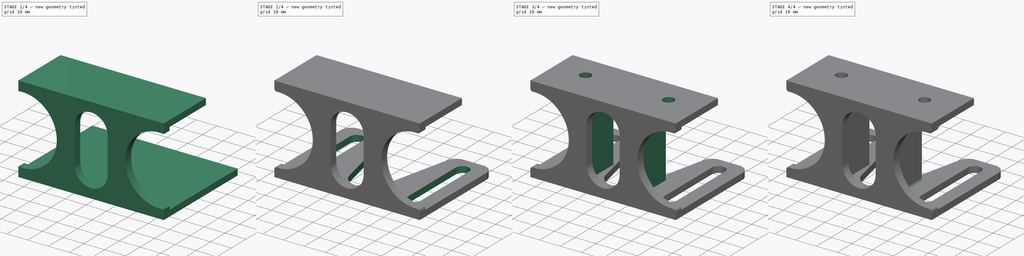
[diagram: build sequence overview — one tinted view per stage of 4, left to right]
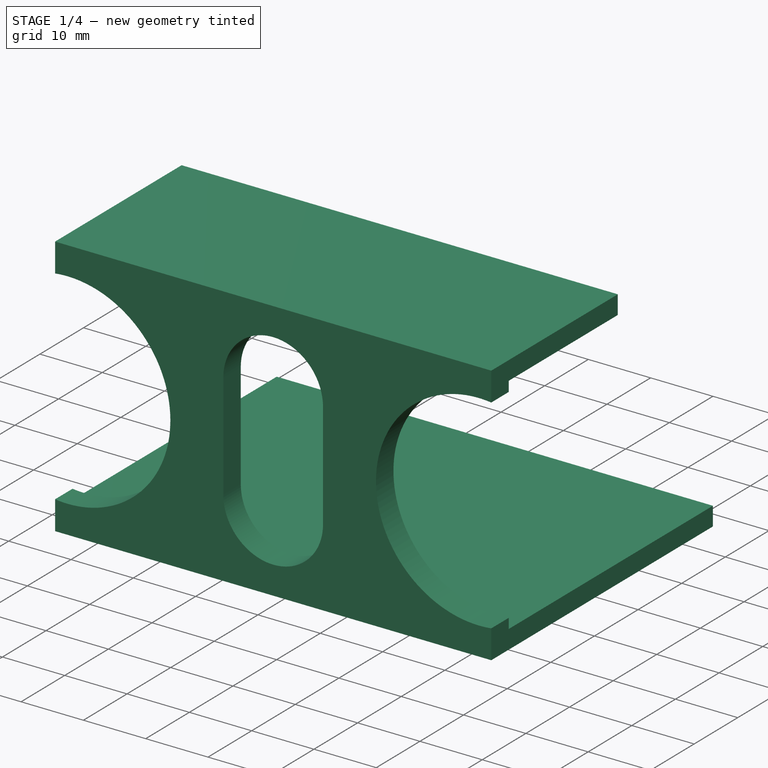
[diagram: stage 1 of 4 — iso view after this stage's code; geometry added in this stage tinted green]
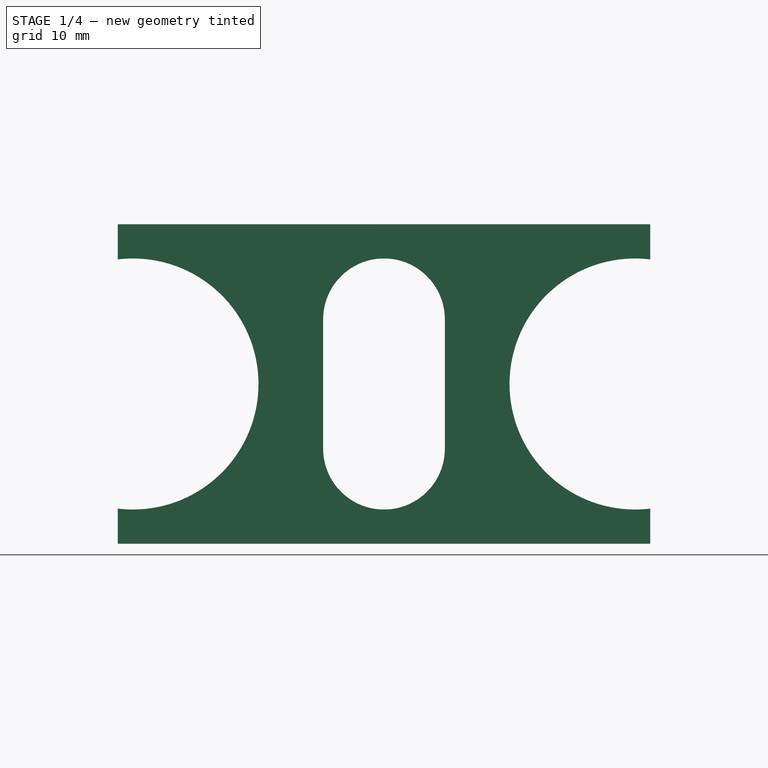
[diagram: stage 1 of 4 — front view after this stage's code; geometry added in this stage tinted green]
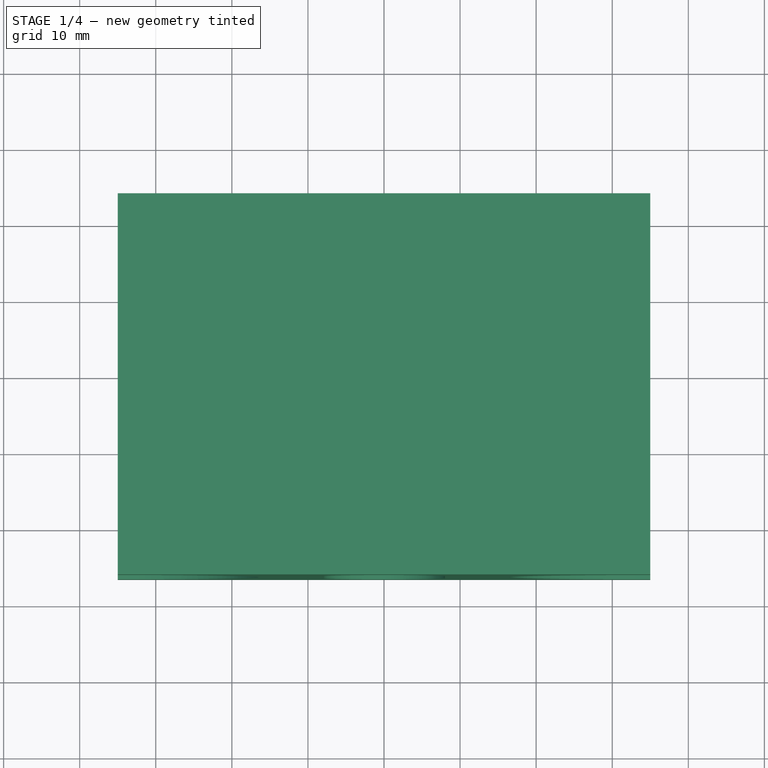
[diagram: stage 1 of 4 — top view after this stage's code; geometry added in this stage tinted green]
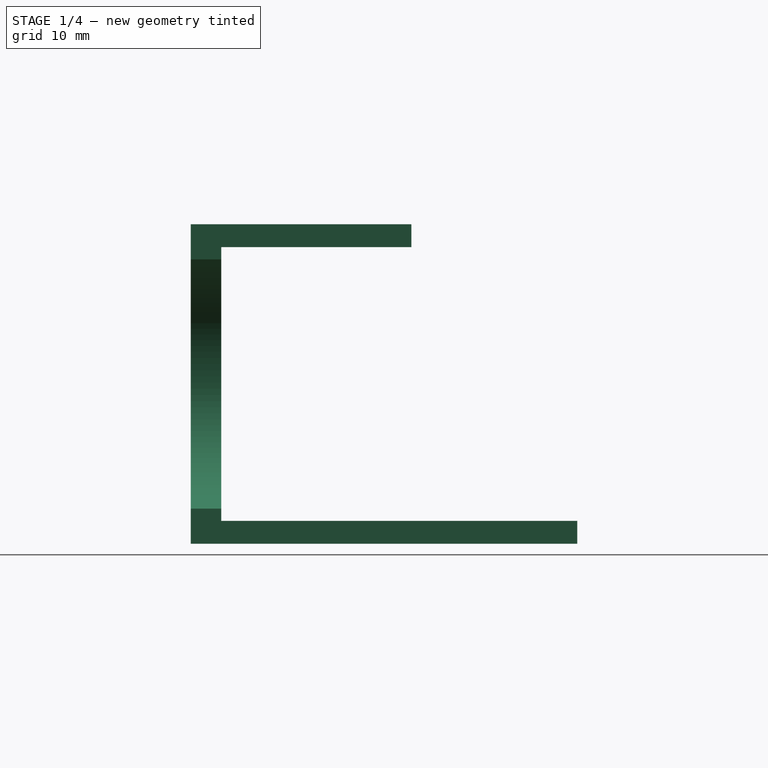
[diagram: stage 1 of 4 — right view after this stage's code; geometry added in this stage tinted green]
FCSTD DOCUMENT  (FreeCAD 0.19R24344 (Git))
Label: Stand_Camera-Case
Comment: Stand for PS3 Camera Case
License: Creative Commons Attribution-NonCommercial-ShareAlike
LicenseURL: http://creativecommons.org/licenses/by-nc-sa/4.0/
objects: Sketcher::SketchObject×5, PartDesign::Fillet×5, PartDesign::Pocket×3, PartDesign::Pad×2, PartDesign::CoordinateSystem×2, PartDesign::Body×1
note: 28 computed .brp shape members not serialized (recipe doc carries the construction recipe); baked Part::Feature solids carry a one-line shape summary decoded from their .brp

FEATURE [Sketcher::SketchObject] Sketch
  FullyConstrained = true
  MapMode = 5
  Placement = pos=(0,0,0) rot=(0.57735,0.57735,0.57735;2.0944rad)
  Support = -> [YZ_Plane]
  sketch-geometry (8):
    g0: LineSegment StartX=34.3 StartY=-18 StartZ=0 EndX=34.3 EndY=-21 EndZ=0
    g1: LineSegment StartX=34.3 StartY=-21 StartZ=0 EndX=-16.5 EndY=-21 EndZ=0
    g2: LineSegment StartX=-16.5 StartY=-21 StartZ=0 EndX=-16.5 EndY=21 EndZ=0
    g3: LineSegment StartX=-16.5 StartY=21 StartZ=0 EndX=12.5 EndY=21 EndZ=0
    g4: LineSegment StartX=12.5 StartY=21 StartZ=0 EndX=12.5 EndY=18 EndZ=0
    g5: LineSegment StartX=12.5 StartY=18 StartZ=0 EndX=-12.5 EndY=18 EndZ=0
    g6: LineSegment StartX=-12.5 StartY=18 StartZ=0 EndX=-12.5 EndY=-18 EndZ=0
    g7: LineSegment StartX=-12.5 StartY=-18 StartZ=0 EndX=34.3 EndY=-18 EndZ=0
  constraints (22):
    c: Vertical(g0)
    c: Coincident(g0,g1)
    c: Horizontal(g1)
    c: Coincident(g1,g2)
    c: Vertical(g2)
    c: Coincident(g2,g3)
    c: Horizontal(g3)
    c: Coincident(g3,g4)
    c: Vertical(g4)
    c: Coincident(g4,g5)
    c: Coincident(g5,g6)
    c: Coincident(g6,g7)
    c: Coincident(g7,g0)
    c: Horizontal(g7)
    c: Distance(g0) = 3
    c: Distance(g4) = 3
    c: DistanceX(g2,g5) = 4
    c: Distance(g5) = 25
    c: Distance(g2) = 42
    c: Distance(g1) = 50.8
    c: Symmetric(g5,g6,g-1)
    c: Symmetric(g4,g5,g-2)
FEATURE [PartDesign::Pad] Pad
  Direction = (1,1,1)
  Length = 70
  Length2 = 100
  Midplane = true
  Placement = pos=(0,0,0) rot=(0.57735,0.57735,0.57735;2.0944rad)
  Profile = -> Sketch
  Type = 0
FEATURE [Sketcher::SketchObject] Sketch001
  ExternalGeometry = -> [Pad]
  FullyConstrained = true
  MapMode = 5
  Placement = pos=(-7.3e-15,-16.5,3.6e-15) rot=(-0.57735,-0.57735,0.57735;4.18879rad)
  Support = -> [Pad]
  sketch-geometry (8):
    g0: Circle CenterX=0 CenterY=33 CenterZ=0 NormalX=0 NormalY=0 NormalZ=1 AngleXU=0 Radius=16.5
    g1: Circle CenterX=0 CenterY=-33 CenterZ=0 NormalX=0 NormalY=0 NormalZ=1 AngleXU=0 Radius=16.5
    g2: ArcOfCircle CenterX=-8.5 CenterY=0 CenterZ=0 NormalX=0 NormalY=0 NormalZ=1 AngleXU=0 Radius=8 StartAngle=1.5708 EndAngle=4.71239
    g3: ArcOfCircle CenterX=8.5 CenterY=1e-16 CenterZ=0 NormalX=0 NormalY=0 NormalZ=1 AngleXU=0 Radius=8 StartAngle=4.71239 EndAngle=7.85398
    g4: LineSegment StartX=-8.5 StartY=-8 StartZ=0 EndX=8.5 EndY=-8 EndZ=0
    g5: LineSegment StartX=-8.5 StartY=8 StartZ=0 EndX=8.5 EndY=8 EndZ=0
    g6: LineSegment StartX=-16.5 StartY=2.21473e-05 StartZ=0 EndX=-16.5 EndY=10 EndZ=0
    g7: LineSegment StartX=16.5 StartY=0 StartZ=0 EndX=16.5 EndY=10 EndZ=0
  constraints (22):
    c: Diameter(g0) = 33
    c: Diameter(g1) = 33
    c: PointOnObject(g1,g-2)
    c: Tangent(g2,g5) = 1.5708
    c: Tangent(g2,g4) = -1.5708
    c: Tangent(g4,g3) = -1.5708
    c: Tangent(g5,g3) = 1.5708
    c: Horizontal(g4)
    c: PointOnObject(g2,g-1)
    c: Symmetric(g2,g3,g-2)
    c: PointOnObject(g6,g2)
    c: Vertical(g6)
    c: Tangent(g6,g2)
    c: PointOnObject(g7,g3)
    c: Vertical(g7)
    c: PointOnObject(g7,g-1)
    c: Diameter(g3) = 16
    c: DistanceX(g6,g7) = 33
    c: Distance(g-1,g1) = 33
    c: Symmetric(g0,g1,g-1)
    c: Distance(g7) = 10
    c: Distance(g6) = 10
FEATURE [PartDesign::Pocket] Pocket
  BaseFeature = -> Pad
  Length = 5
  Length2 = 100
  Placement = pos=(0,0,0) rot=(0.57735,0.57735,0.57735;2.0944rad)
  Profile = -> Sketch001
  Type = 0
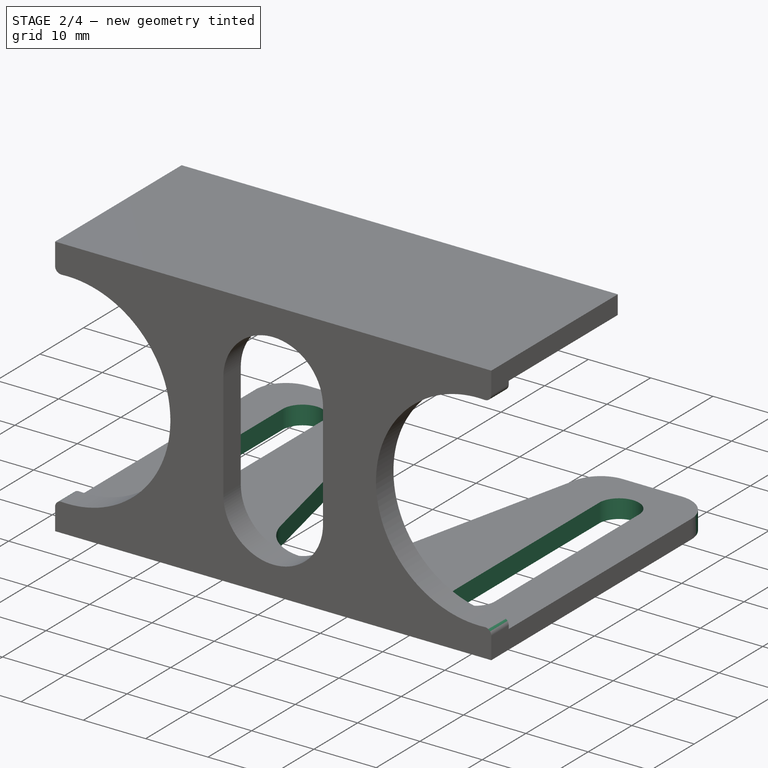
[diagram: stage 2 of 4 — iso view after this stage's code; geometry added in this stage tinted green]
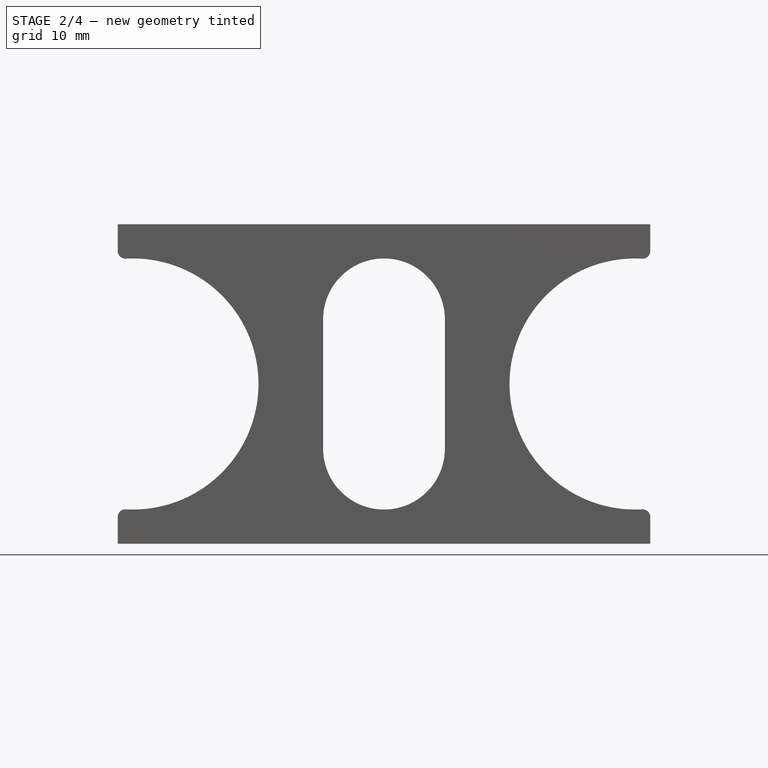
[diagram: stage 2 of 4 — front view after this stage's code; geometry added in this stage tinted green]
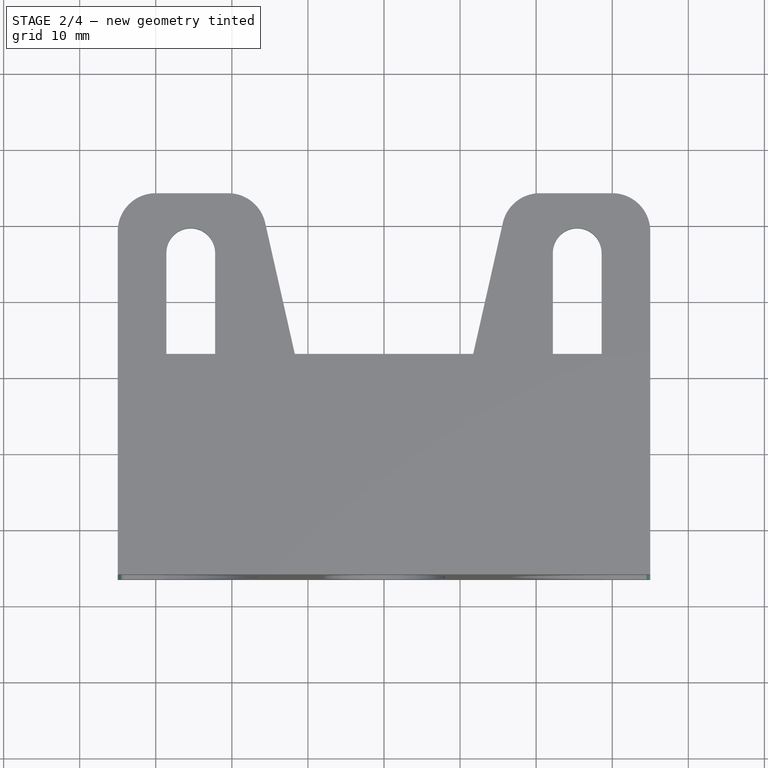
[diagram: stage 2 of 4 — top view after this stage's code; geometry added in this stage tinted green]
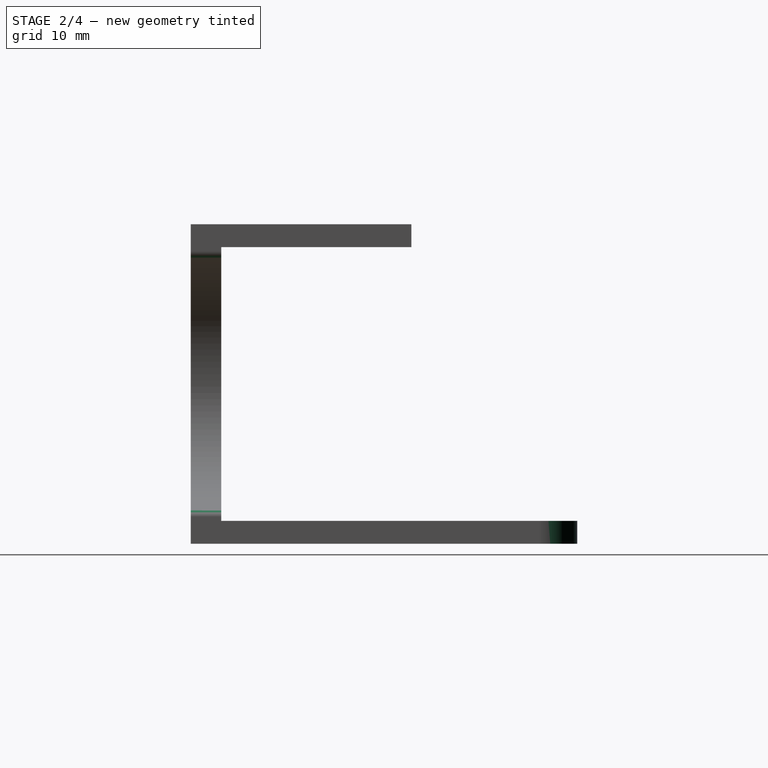
[diagram: stage 2 of 4 — right view after this stage's code; geometry added in this stage tinted green]
FEATURE [Sketcher::SketchObject] Sketch002
  ExternalGeometry = -> [Pocket]
  FullyConstrained = true
  MapMode = 5
  Placement = pos=(5.9e-15,-9.2e-15,-21) rot=(0.707107,0.707107,0;3.14159rad)
  Support = -> [Pocket]
  sketch-geometry (13):
    g0: ArcOfCircle CenterX=-6.5 CenterY=-25.4 CenterZ=0 NormalX=0 NormalY=0 NormalZ=1 AngleXU=0 Radius=3.2 StartAngle=1.5708 EndAngle=4.71239
    g1: ArcOfCircle CenterX=26.5 CenterY=-25.4 CenterZ=0 NormalX=0 NormalY=0 NormalZ=1 AngleXU=0 Radius=3.2 StartAngle=4.71239 EndAngle=7.85398
    g2: LineSegment StartX=-6.5 StartY=-28.6 StartZ=0 EndX=26.5 EndY=-28.6 EndZ=0
    g3: LineSegment StartX=-6.5 StartY=-22.2 StartZ=0 EndX=26.5 EndY=-22.2 EndZ=0
    g4: ArcOfCircle CenterX=-6.5 CenterY=25.4 CenterZ=0 NormalX=0 NormalY=0 NormalZ=1 AngleXU=0 Radius=3.2 StartAngle=1.5708 EndAngle=4.71239
    g5: ArcOfCircle CenterX=26.5 CenterY=25.4 CenterZ=0 NormalX=0 NormalY=0 NormalZ=1 AngleXU=0 Radius=3.2 StartAngle=4.71239 EndAngle=7.85398
    g6: LineSegment StartX=-6.5 StartY=22.2 StartZ=0 EndX=26.5 EndY=22.2 EndZ=0
    g7: LineSegment StartX=-6.5 StartY=28.6 StartZ=0 EndX=26.5 EndY=28.6 EndZ=0
    g8: ArcOfCircle CenterX=-1.4982 CenterY=0 CenterZ=0 NormalX=0 NormalY=0 NormalZ=1 AngleXU=0 Radius=8.2018 StartAngle=1.79309 EndAngle=4.4901
    g9: ArcOfCircle CenterX=38.0294 CenterY=-3e-16 CenterZ=0 NormalX=0 NormalY=0 NormalZ=1 AngleXU=0 Radius=16.9162 StartAngle=4.4901 EndAngle=8.07627
    g10: LineSegment StartX=-3.3064 StartY=-8 StartZ=0 EndX=34.3 EndY=-16.5 EndZ=0
    g11: LineSegment StartX=-3.3064 StartY=8 StartZ=0 EndX=34.3 EndY=16.5 EndZ=0
    g12: LineSegment StartX=-9.7 StartY=25.4 StartZ=0 EndX=-9.7 EndY=-25.4 EndZ=0
  constraints (33):
    c: Tangent(g0,g3) = 1.5708
    c: Tangent(g0,g2) = -1.5708
    c: Tangent(g2,g1) = -1.5708
    c: Tangent(g3,g1) = 1.5708
    c: Horizontal(g2)
    c: Equal(g0,g1)
    c: Tangent(g4,g7) = 1.5708
    c: Tangent(g4,g6) = -1.5708
    c: Tangent(g6,g5) = -1.5708
    c: Tangent(g7,g5) = 1.5708
    c: Horizontal(g6)
    c: Equal(g4,g5)
    c: DistanceY(g0,g4) = 50.8
    c: Symmetric(g4,g0,g-1)
    c: Distance(g5,g5) = 6.4
    c: Distance(g1,g1) = 6.4
    c: Distance(g6) = 33
    c: Distance(g3) = 33
    c: DistanceX(g-3,g4) = 10
    c: Tangent(g8,g11) = 1.5708
    c: Tangent(g8,g10) = -1.5708
    c: Tangent(g10,g9) = -1.5708
    c: Tangent(g11,g9) = 1.5708
    c: PointOnObject(g8,g-1)
    c: Vertical(g8,g8)
    c: PointOnObject(g12,g4)
    c: PointOnObject(g12,g0)
    c: Vertical(g12)
    c: Tangent(g12,g4)
    c: Tangent(g8,g12)
    c: PointOnObject(g9,g-4)
    c: Distance(g8,g8) = 16
    c: Distance(g9,g9) = 33
FEATURE [PartDesign::Pocket] Pocket001
  BaseFeature = -> Pocket
  Length = 5
  Length2 = 100
  Placement = pos=(0,0,0) rot=(0.57735,0.57735,0.57735;2.0944rad)
  Profile = -> Sketch002
  Type = 0
FEATURE [PartDesign::Fillet] Fillet
  Base = -> Pocket001 [Edge81,Edge79,Edge7,Edge64]
  BaseFeature = -> Pocket001
  Placement = pos=(0,0,0) rot=(0.57735,0.57735,0.57735;2.0944rad)
  Radius = 1
  SupportTransform = false
FEATURE [PartDesign::Fillet] Fillet001
  Base = -> Fillet [Edge86,Edge93,Edge57,Edge5]
  BaseFeature = -> Fillet
  Placement = pos=(0,0,0) rot=(0.57735,0.57735,0.57735;2.0944rad)
  Radius = 5
  SupportTransform = false
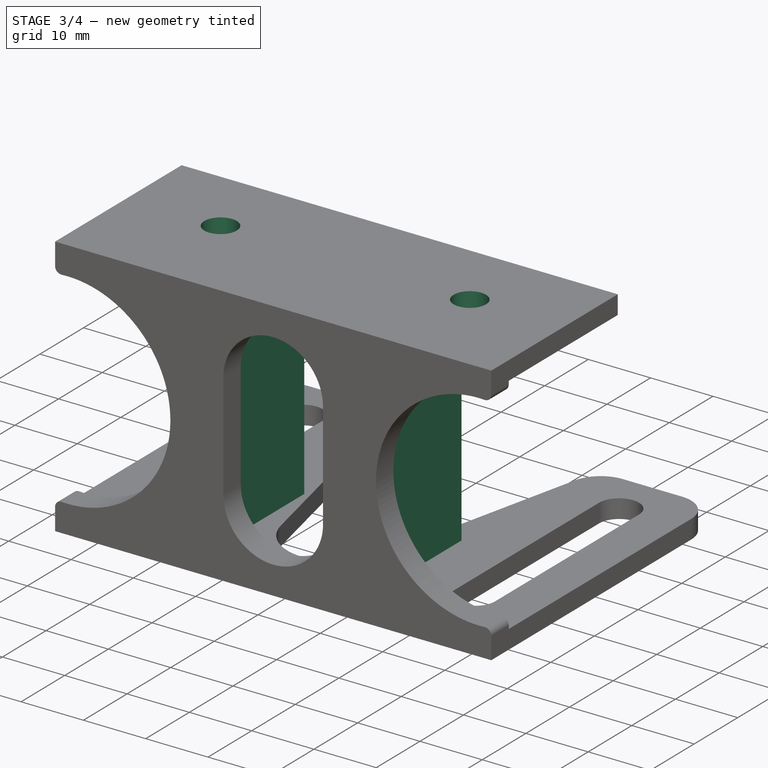
[diagram: stage 3 of 4 — iso view after this stage's code; geometry added in this stage tinted green]
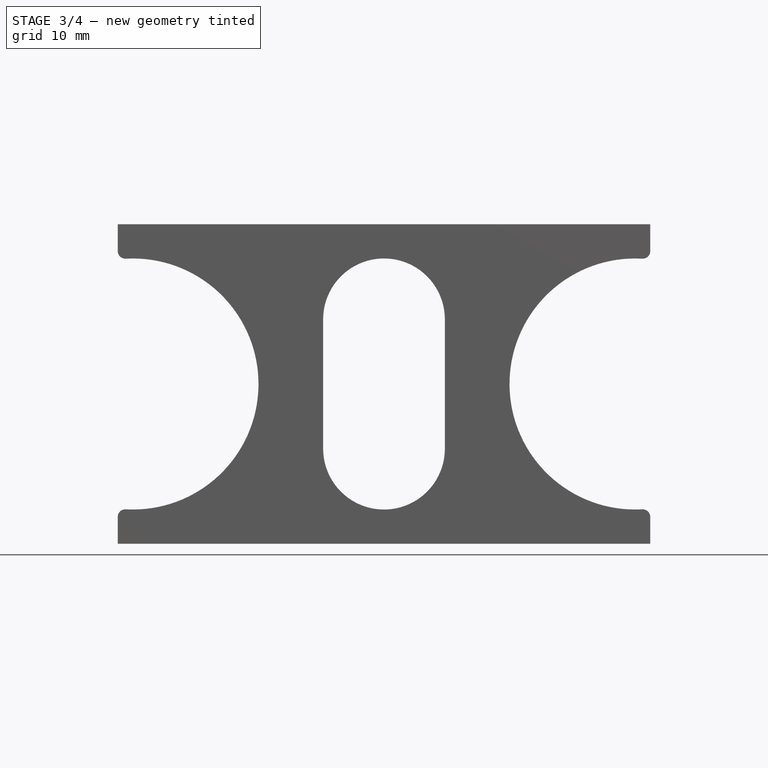
[diagram: stage 3 of 4 — front view after this stage's code; geometry added in this stage tinted green]
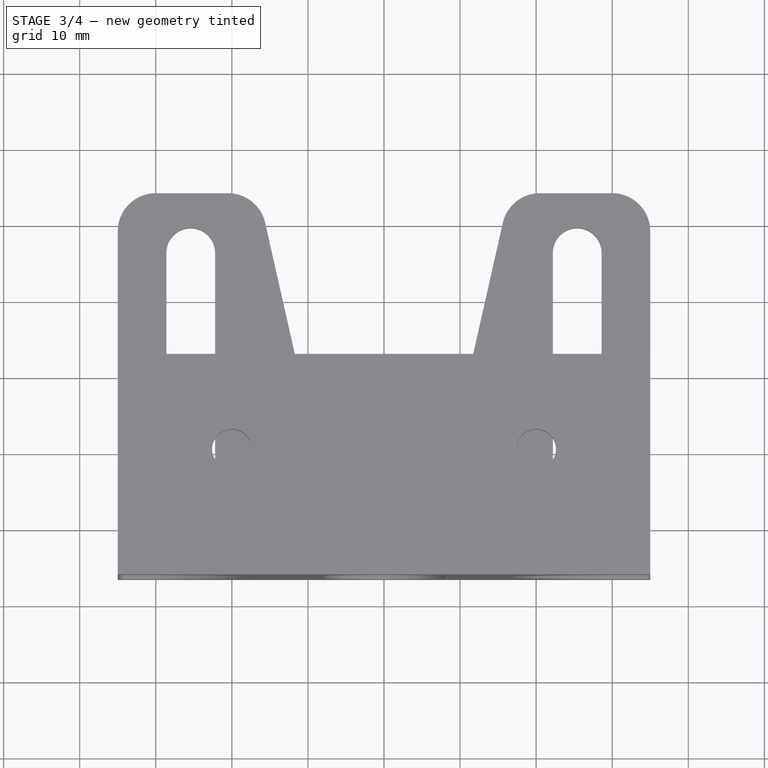
[diagram: stage 3 of 4 — top view after this stage's code; geometry added in this stage tinted green]
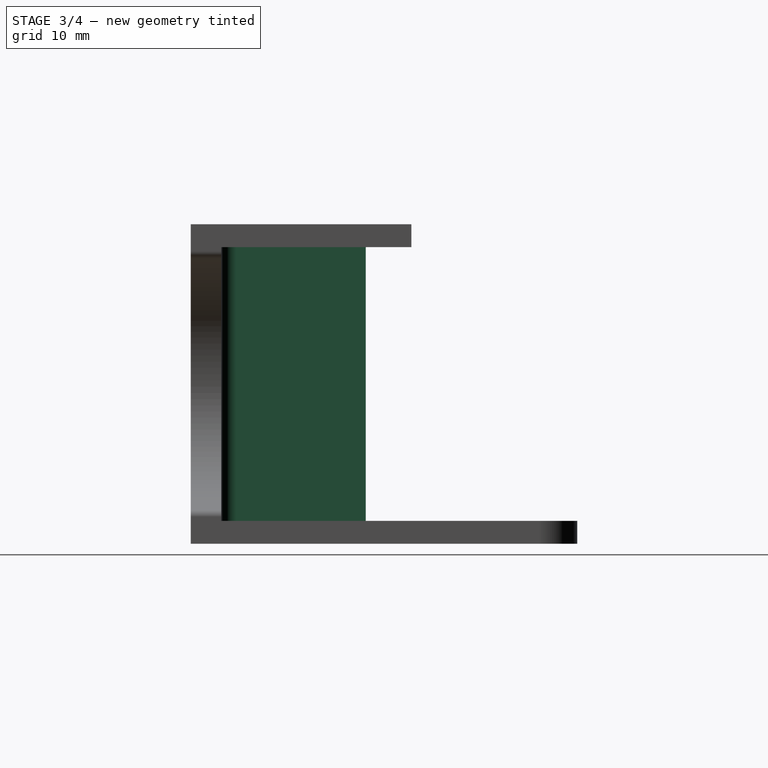
[diagram: stage 3 of 4 — right view after this stage's code; geometry added in this stage tinted green]
FEATURE [Sketcher::SketchObject] Sketch003
  FullyConstrained = true
  MapMode = 5
  Placement = pos=(-5.9e-15,9.2e-15,21) rot=(0,0,-1;1.5708rad)
  Support = -> [Fillet001]
  sketch-geometry (2):
    g0: Circle CenterX=0 CenterY=20 CenterZ=0 NormalX=0 NormalY=0 NormalZ=1 AngleXU=0 Radius=2.6
    g1: Circle CenterX=0 CenterY=-20 CenterZ=0 NormalX=0 NormalY=0 NormalZ=1 AngleXU=0 Radius=2.6
  constraints (5):
    c: PointOnObject(g0,g-2)
    c: Equal(g1,g0)
    c: Diameter(g0) = 5.2
    c: Distance(g0,g1) = 40
    c: Symmetric(g0,g1,g-1)
FEATURE [PartDesign::Pocket] Pocket002
  BaseFeature = -> Fillet001
  Length = 5
  Length2 = 100
  Placement = pos=(0,0,0) rot=(0.57735,0.57735,0.57735;2.0944rad)
  Profile = -> Sketch003
  Type = 0
FEATURE [Sketcher::SketchObject] Sketch004
  ExternalGeometry = -> [Pocket002]
  FullyConstrained = true
  MapMode = 5
  Placement = pos=(-5.5e-15,-12.5,2.8e-15) rot=(0.57735,0.57735,0.57735;4.18879rad)
  Support = -> [Pocket002]
  sketch-geometry (8):
    g0: LineSegment StartX=-18 StartY=-11.119 StartZ=0 EndX=18 EndY=-11.119 EndZ=0
    g1: LineSegment StartX=18 StartY=-11.119 StartZ=0 EndX=18 EndY=-14.119 EndZ=0
    g2: LineSegment StartX=18 StartY=-14.119 StartZ=0 EndX=-18 EndY=-14.119 EndZ=0
    g3: LineSegment StartX=-18 StartY=-14.119 StartZ=0 EndX=-18 EndY=-11.119 EndZ=0
    g4: LineSegment StartX=-18 StartY=14.119 StartZ=0 EndX=18 EndY=14.119 EndZ=0
    g5: LineSegment StartX=18 StartY=14.119 StartZ=0 EndX=18 EndY=11.119 EndZ=0
    g6: LineSegment StartX=18 StartY=11.119 StartZ=0 EndX=-18 EndY=11.119 EndZ=0
    g7: LineSegment StartX=-18 StartY=11.119 StartZ=0 EndX=-18 EndY=14.119 EndZ=0
  constraints (24):
    c: Coincident(g0,g1)
    c: Coincident(g1,g2)
    c: Coincident(g2,g3)
    c: Coincident(g3,g0)
    c: Horizontal(g0)
    c: Horizontal(g2)
    c: Vertical(g1)
    c: Vertical(g3)
    c: PointOnObject(g1,g-4)
    c: Distance(g1) = 3
    c: Coincident(g4,g5)
    c: Coincident(g5,g6)
    c: Coincident(g6,g7)
    c: Coincident(g7,g4)
    c: Horizontal(g4)
    c: Horizontal(g6)
    c: Vertical(g5)
    c: Vertical(g7)
    c: PointOnObject(g5,g-4)
    c: Distance(g5) = 3
    c: DistanceY(g4,g-5) = 1.5
    c: Vertical(g4,g-5)
    c: DistanceY(g-3,g2) = 1.5
    c: Vertical(g2,g-3)
FEATURE [PartDesign::Pad] Pad001
  BaseFeature = -> Pocket002
  Direction = (1,1,1)
  Length = 19
  Length2 = 100
  Placement = pos=(0,0,0) rot=(0.57735,0.57735,0.57735;2.0944rad)
  Profile = -> Sketch004
  Type = 0
FEATURE [PartDesign::Fillet] Fillet002
  Base = -> Pad001 [Edge88,Edge101,Edge100,Edge40]
  BaseFeature = -> Pad001
  Placement = pos=(0,0,0) rot=(0.57735,0.57735,0.57735;2.0944rad)
  Radius = 2
  SupportTransform = false
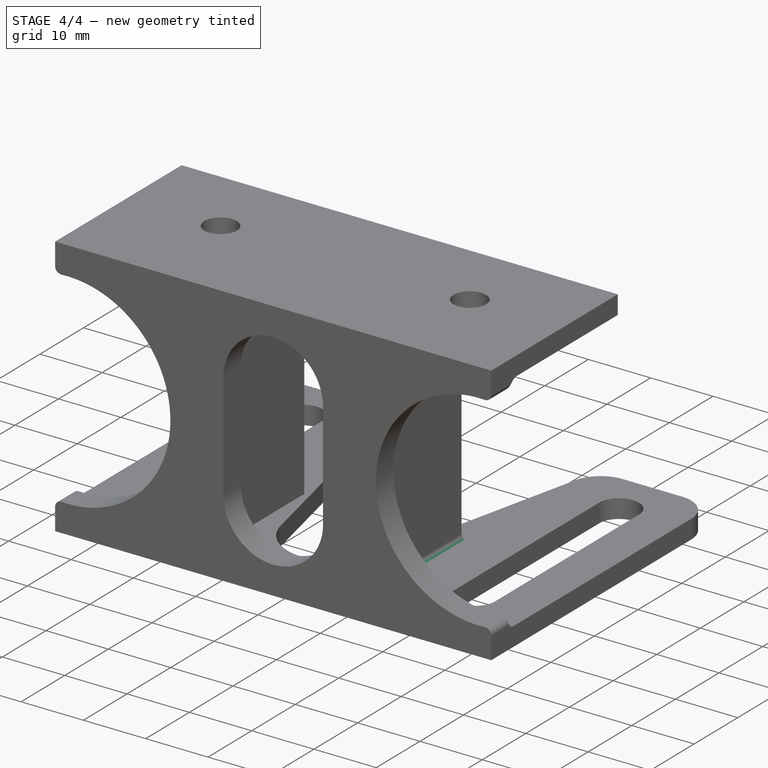
[diagram: stage 4 of 4 — iso view after this stage's code; geometry added in this stage tinted green]
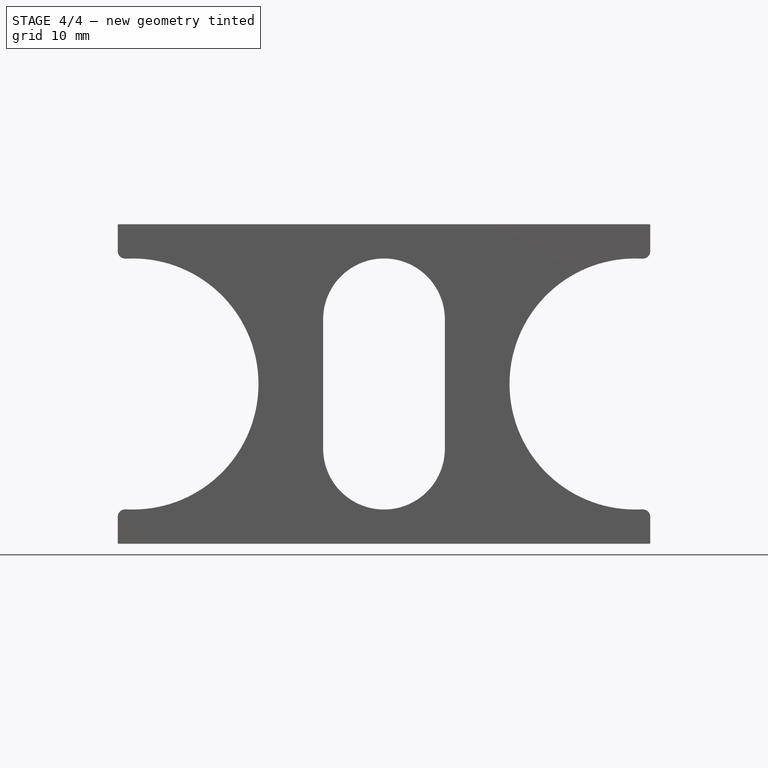
[diagram: stage 4 of 4 — front view after this stage's code; geometry added in this stage tinted green]
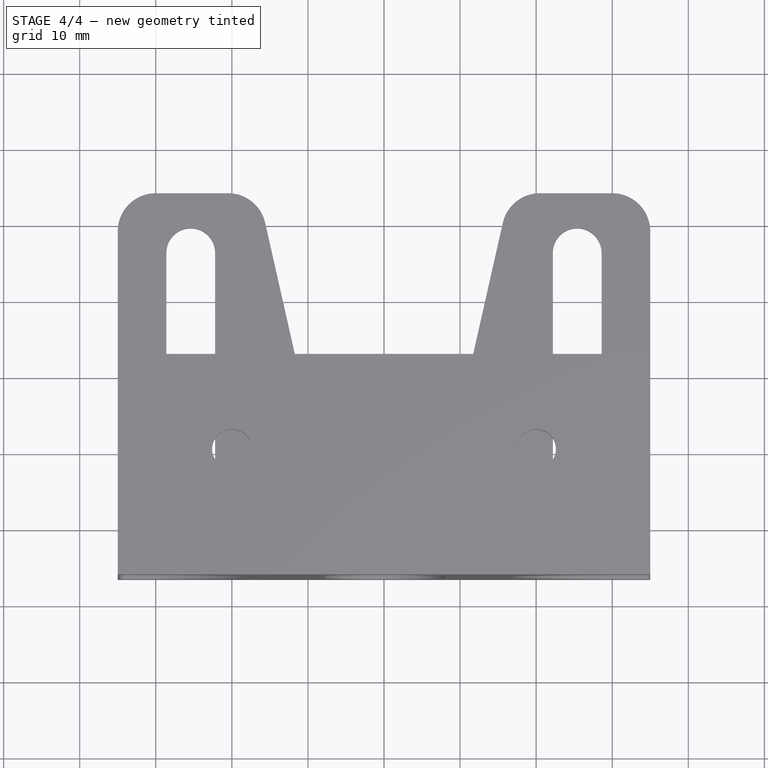
[diagram: stage 4 of 4 — top view after this stage's code; geometry added in this stage tinted green]
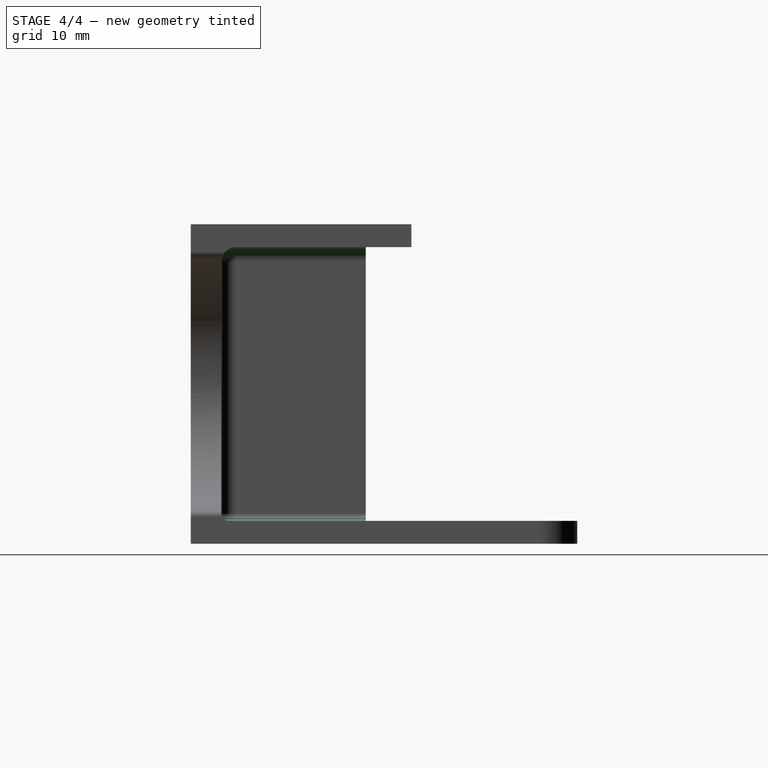
[diagram: stage 4 of 4 — right view after this stage's code; geometry added in this stage tinted green]
FEATURE [PartDesign::Fillet] Fillet003
  Base = -> Fillet002 [Edge93,Edge64,Edge35]
  BaseFeature = -> Fillet002
  Placement = pos=(0,0,0) rot=(0.57735,0.57735,0.57735;2.0944rad)
  Radius = 2
  SupportTransform = false
FEATURE [PartDesign::Fillet] Fillet004
  Base = -> Fillet003 [Edge3,Edge37]
  BaseFeature = -> Fillet003
  Placement = pos=(0,0,0) rot=(0.57735,0.57735,0.57735;2.0944rad)
  Radius = 1
  SupportTransform = false
FEATURE [PartDesign::CoordinateSystem] LCS_Baseplate_Right
  AttacherType = Attacher::AttachEngine3D
  MapMode = 45
  Placement = pos=(25.4,-8.53718,-21) rot=(0,0,1;1.5708rad)
  Support = -> [Fillet004]
FEATURE [PartDesign::CoordinateSystem] LCS_Top_Mount
  AttacherType = Attacher::AttachEngine3D
  MapMode = 45
  Placement = pos=(-1.11e-14,-2.04274,21) rot=(0,0,1;1.5708rad)
  Support = -> [Fillet004]
FEATURE [PartDesign::Body] Body  label="Stand_Camera"
  Group = -> [Sketch,Pad,Sketch001,Pocket,Sketch002,Pocket001,Fillet,Fillet001,Sketch003,Pocket002,Sketch004,Pad001,Fillet002,Fillet003,Fillet004,LCS_Baseplate_Right,LCS_Top_Mount]
  Origin = -> Origin
  Tip = -> Fillet004
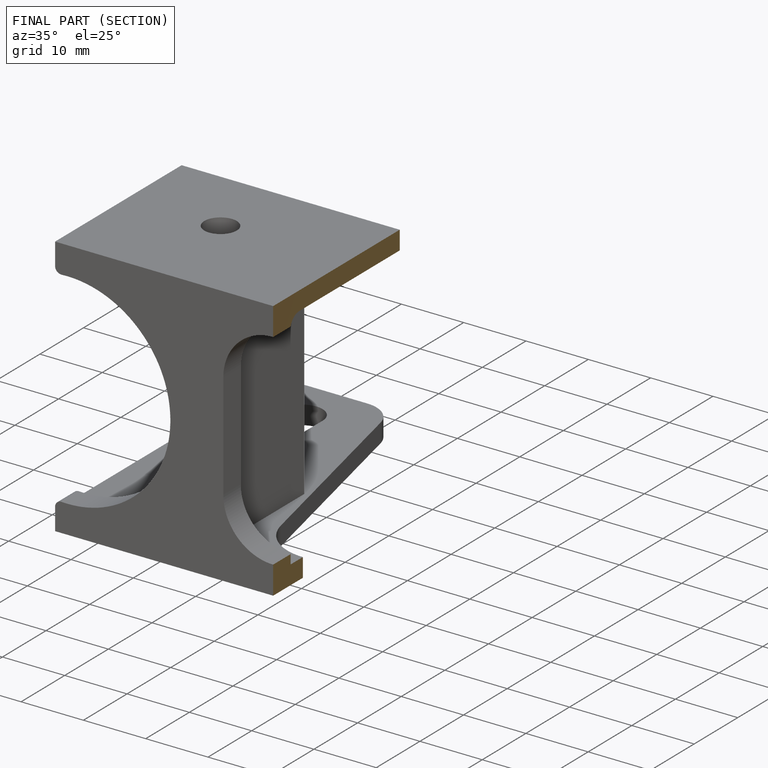
[diagram: finished part — half-section view (interior)]
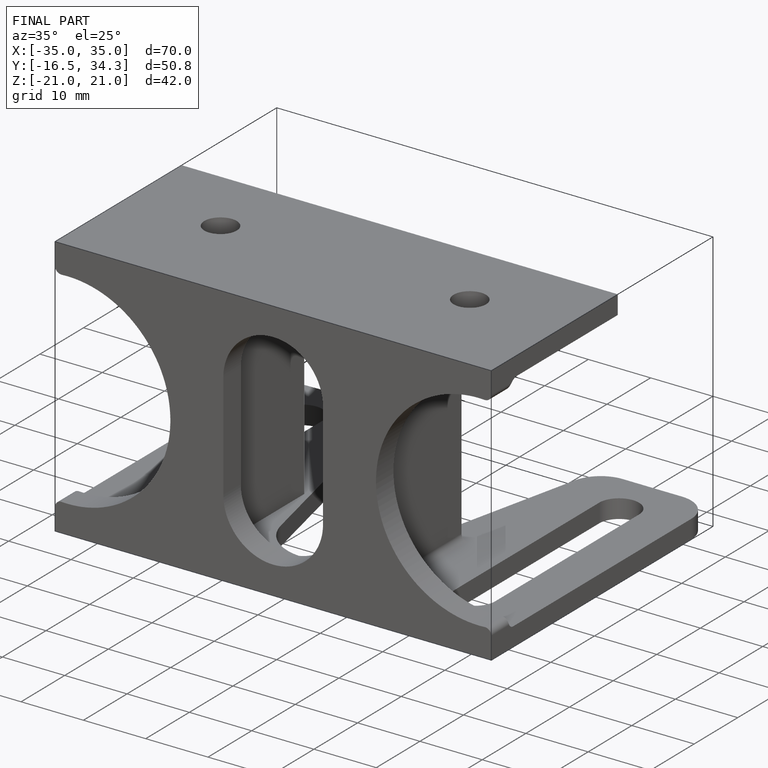
[diagram: finished part — iso view with bounding-box wireframe]
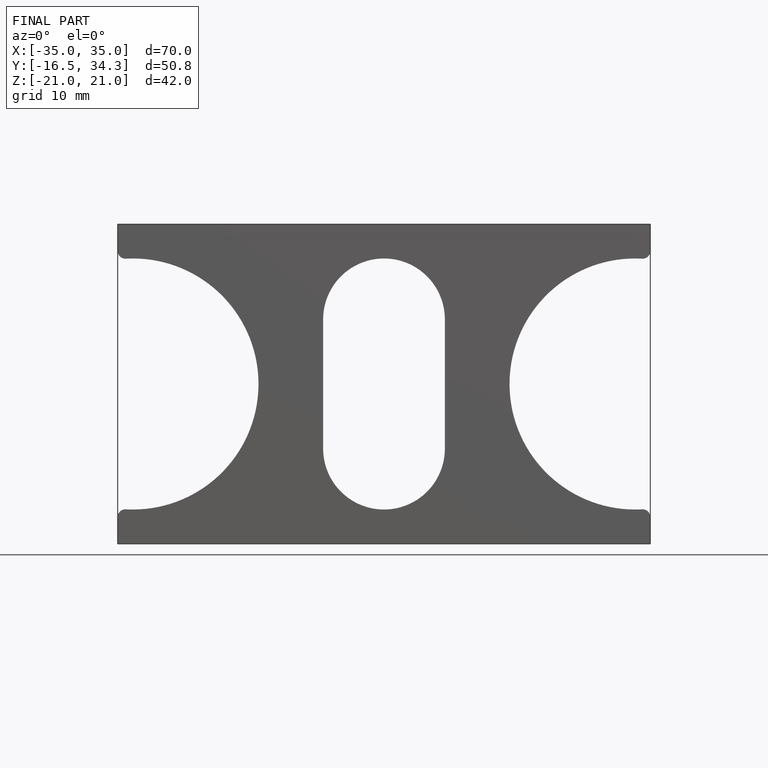
[diagram: finished part — front view with bounding-box wireframe]
